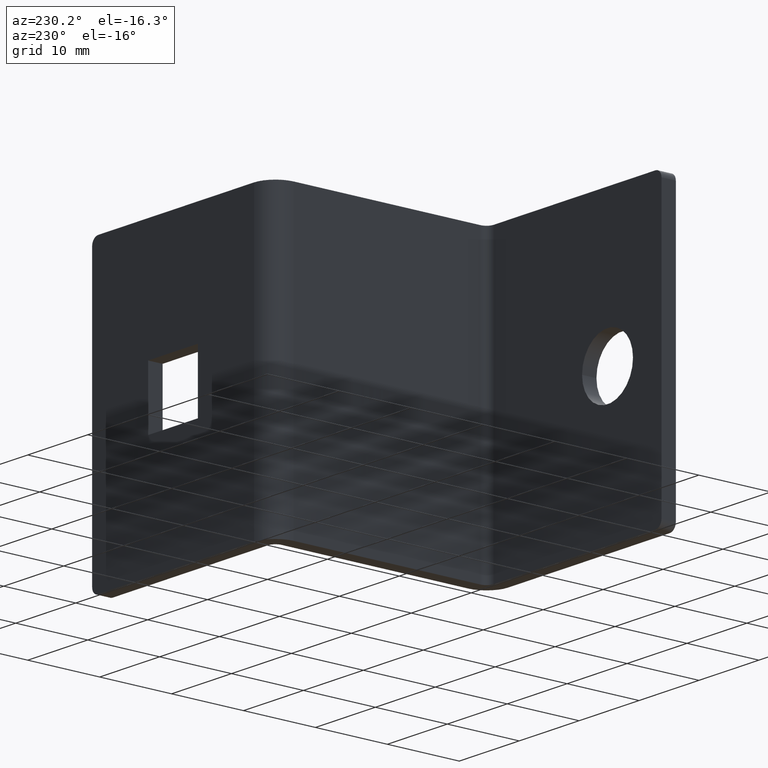
[diagram: clean part render]
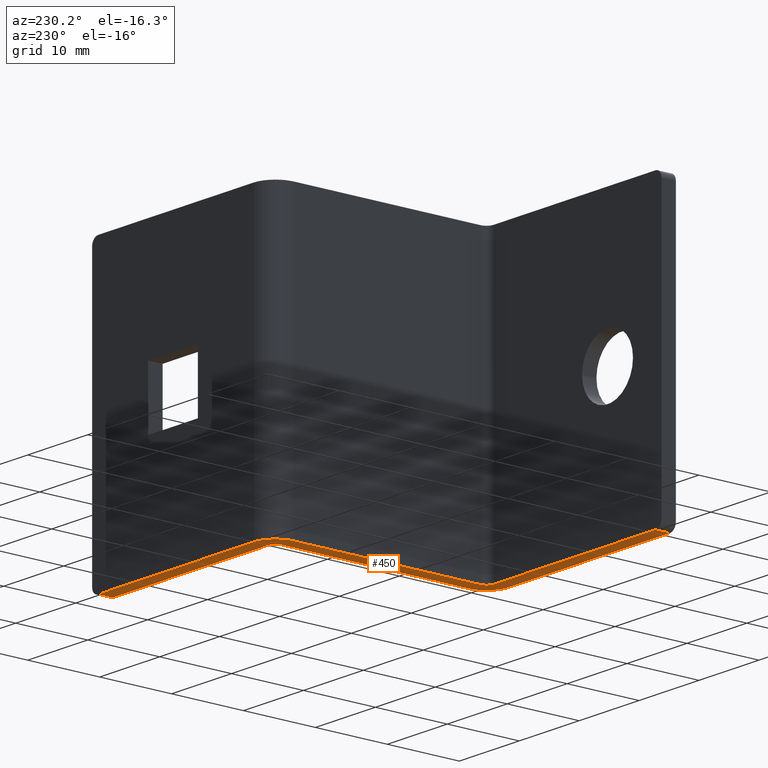
[diagram: same view with one face highlighted and labeled with its STEP entity id]
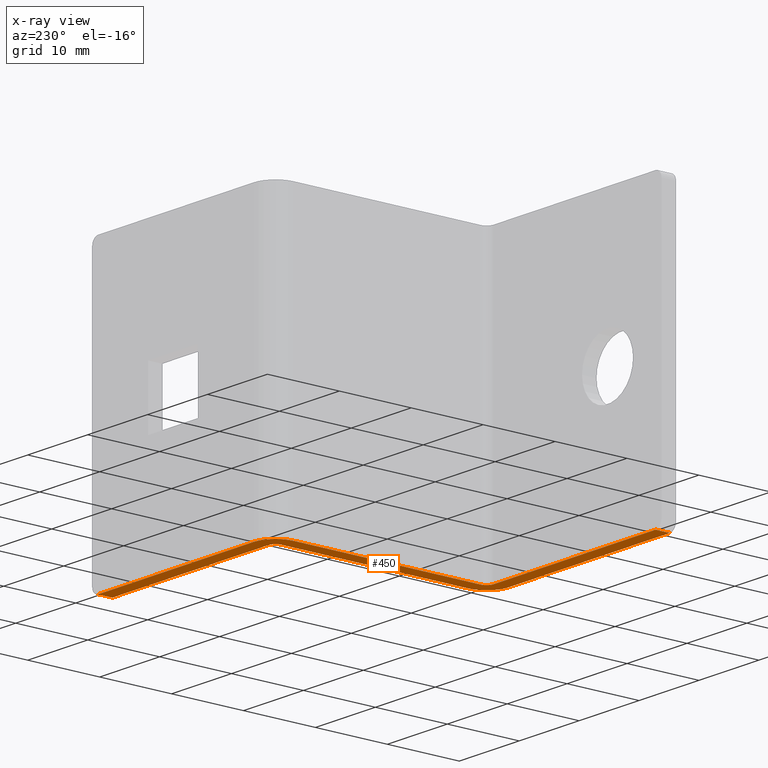
[diagram: x-ray of the same camera — body ghosted, the highlighted face saturated]
A machine part, auxiliary view. The second image highlights one B-rep face of the part: STEP entity #450.
The next image is the same camera in x-ray: the body ghosted, the highlighted face saturated — about 0% of this face is hidden behind the body in this view.
In plain terms, the highlighted planar face has unit normal (0, 0, 1).
Its self-contained STEP definition (entity closure, byte-faithful):
#28=PLANE('',#493);
#32=LINE('',#643,#76);
#37=LINE('',#654,#81);
#45=LINE('',#676,#89);
#50=LINE('',#689,#94);
#61=LINE('',#717,#105);
#66=LINE('',#735,#110);
#69=LINE('',#743,#113);
#72=LINE('',#747,#116);
#76=VECTOR('',#515,27.);
#81=VECTOR('',#526,2.);
#89=VECTOR('',#544,26.);
#94=VECTOR('',#555,2.00000000000006);
#105=VECTOR('',#582,26.);
#110=VECTOR('',#601,26.);
#113=VECTOR('',#612,26.);
#116=VECTOR('',#617,27.);
#144=FACE_OUTER_BOUND('',#172,.T.);
#172=EDGE_LOOP('',(#407,#408,#409,#410,#411,#412,#413,#414,#415,#416,#417,
#418));
#183=CIRCLE('',#477,1.00000000000001);
#185=CIRCLE('',#481,3.);
#187=CIRCLE('',#484,1.00000000000001);
#189=CIRCLE('',#488,3.);
#198=VERTEX_POINT('',#640);
#199=VERTEX_POINT('',#642);
#202=VERTEX_POINT('',#652);
#210=VERTEX_POINT('',#673);
#211=VERTEX_POINT('',#675);
#216=VERTEX_POINT('',#687);
#221=VERTEX_POINT('',#707);
#222=VERTEX_POINT('',#708);
#225=VERTEX_POINT('',#716);
#227=VERTEX_POINT('',#722);
#229=VERTEX_POINT('',#728);
#231=VERTEX_POINT('',#734);
#241=EDGE_CURVE('',#198,#199,#32,.T.);
#247=EDGE_CURVE('',#202,#198,#37,.T.);
#257=EDGE_CURVE('',#210,#211,#45,.T.);
#264=EDGE_CURVE('',#211,#216,#50,.T.);
#273=EDGE_CURVE('',#221,#222,#183,.T.);
#277=EDGE_CURVE('',#225,#221,#61,.T.);
#280=EDGE_CURVE('',#227,#225,#185,.T.);
#283=EDGE_CURVE('',#229,#210,#187,.T.);
#286=EDGE_CURVE('',#231,#229,#66,.T.);
#289=EDGE_CURVE('',#199,#231,#189,.T.);
#291=EDGE_CURVE('',#216,#227,#69,.T.);
#294=EDGE_CURVE('',#222,#202,#72,.T.);
#407=ORIENTED_EDGE('',*,*,#247,.F.);
#408=ORIENTED_EDGE('',*,*,#294,.F.);
#409=ORIENTED_EDGE('',*,*,#273,.F.);
#410=ORIENTED_EDGE('',*,*,#277,.F.);
#411=ORIENTED_EDGE('',*,*,#280,.F.);
#412=ORIENTED_EDGE('',*,*,#291,.F.);
#413=ORIENTED_EDGE('',*,*,#264,.F.);
#414=ORIENTED_EDGE('',*,*,#257,.F.);
#415=ORIENTED_EDGE('',*,*,#283,.F.);
#416=ORIENTED_EDGE('',*,*,#286,.F.);
#417=ORIENTED_EDGE('',*,*,#289,.F.);
#418=ORIENTED_EDGE('',*,*,#241,.F.);
#450=ADVANCED_FACE('',(#144),#28,.F.);
#477=AXIS2_PLACEMENT_3D('',#709,#574,#575);
#481=AXIS2_PLACEMENT_3D('',#723,#587,#588);
#484=AXIS2_PLACEMENT_3D('',#729,#594,#595);
#488=AXIS2_PLACEMENT_3D('',#740,#606,#607);
#493=AXIS2_PLACEMENT_3D('',#749,#620,#621);
#515=DIRECTION('',(1.,0.,0.));
#526=DIRECTION('',(0.,-1.,0.));
#544=DIRECTION('',(1.,0.,0.));
#555=DIRECTION('',(0.,1.,0.));
#574=DIRECTION('center_axis',(0.,0.,-1.));
#575=DIRECTION('ref_axis',(-1.33226762955018E-14,1.,0.));
#582=DIRECTION('',(0.,-1.,0.));
#587=DIRECTION('center_axis',(0.,0.,1.));
#588=DIRECTION('ref_axis',(-5.92118946466751E-15,1.,0.));
#594=DIRECTION('center_axis',(0.,0.,-1.));
#595=DIRECTION('ref_axis',(1.77635683940026E-14,-1.,0.));
#601=DIRECTION('',(0.,1.,0.));
#606=DIRECTION('center_axis',(0.,0.,1.));
#607=DIRECTION('ref_axis',(0.,-1.,0.));
#612=DIRECTION('',(-1.,-2.1316282072803E-15,0.));
#617=DIRECTION('',(-1.,3.1720657846433E-16,0.));
#620=DIRECTION('center_axis',(0.,0.,1.));
#621=DIRECTION('ref_axis',(1.,0.,0.));
#640=CARTESIAN_POINT('',(12.0125837680259,35.7006300239079,0.));
#642=CARTESIAN_POINT('',(39.0125837680259,35.7006300239079,0.));
#643=CARTESIAN_POINT('',(11.0125837680259,35.7006300239079,0.));
#652=CARTESIAN_POINT('',(12.0125837680259,37.7006300239079,0.));
#654=CARTESIAN_POINT('',(12.0125837680259,37.2006300239079,0.));
#673=CARTESIAN_POINT('',(43.0125837680259,65.7006300239079,0.));
#675=CARTESIAN_POINT('',(69.0125837680259,65.7006300239079,0.));
#676=CARTESIAN_POINT('',(43.0125837680259,65.7006300239079,0.));
#687=CARTESIAN_POINT('',(69.0125837680259,67.700630023908,0.));
#689=CARTESIAN_POINT('',(69.0125837680259,51.2006300239079,0.));
#707=CARTESIAN_POINT('',(40.0125837680259,38.7006300239079,0.));
#708=CARTESIAN_POINT('',(39.0125837680259,37.7006300239079,0.));
#709=CARTESIAN_POINT('Origin',(39.0125837680259,38.7006300239079,0.));
#716=CARTESIAN_POINT('',(40.0125837680259,64.7006300239079,0.));
#717=CARTESIAN_POINT('',(40.0125837680259,64.7006300239079,0.));
#722=CARTESIAN_POINT('',(43.0125837680259,67.7006300239079,0.));
#723=CARTESIAN_POINT('Origin',(43.0125837680259,64.7006300239079,0.));
#728=CARTESIAN_POINT('',(42.0125837680259,64.7006300239079,0.));
#729=CARTESIAN_POINT('Origin',(43.0125837680259,64.7006300239079,0.));
#734=CARTESIAN_POINT('',(42.0125837680259,38.7006300239079,0.));
#735=CARTESIAN_POINT('',(42.0125837680259,38.7006300239079,0.));
#740=CARTESIAN_POINT('Origin',(39.0125837680259,38.7006300239079,0.));
#743=CARTESIAN_POINT('',(68.0125837680259,67.700630023908,0.));
#747=CARTESIAN_POINT('',(39.0125837680259,37.7006300239079,0.));
#749=CARTESIAN_POINT('Origin',(13.3875837680263,36.7006300239079,0.));